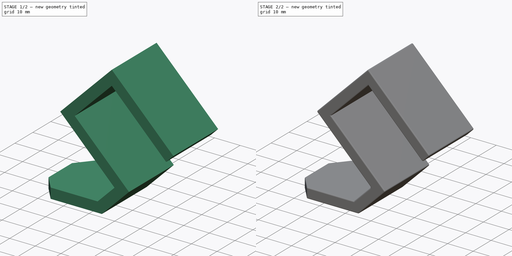
[diagram: build sequence overview — one tinted view per stage of 2, left to right]
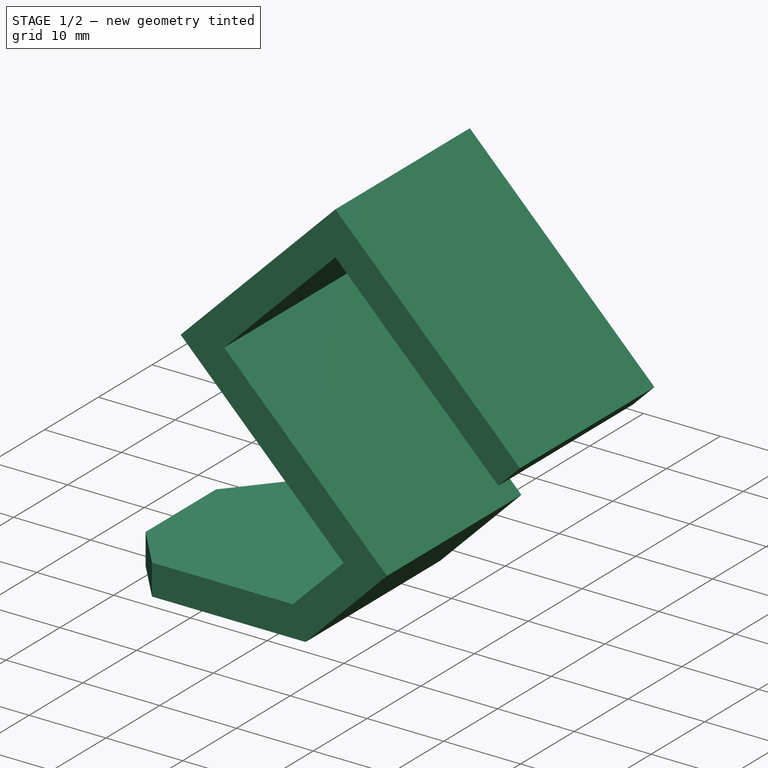
[diagram: stage 1 of 2 — iso view after this stage's code; geometry added in this stage tinted green]
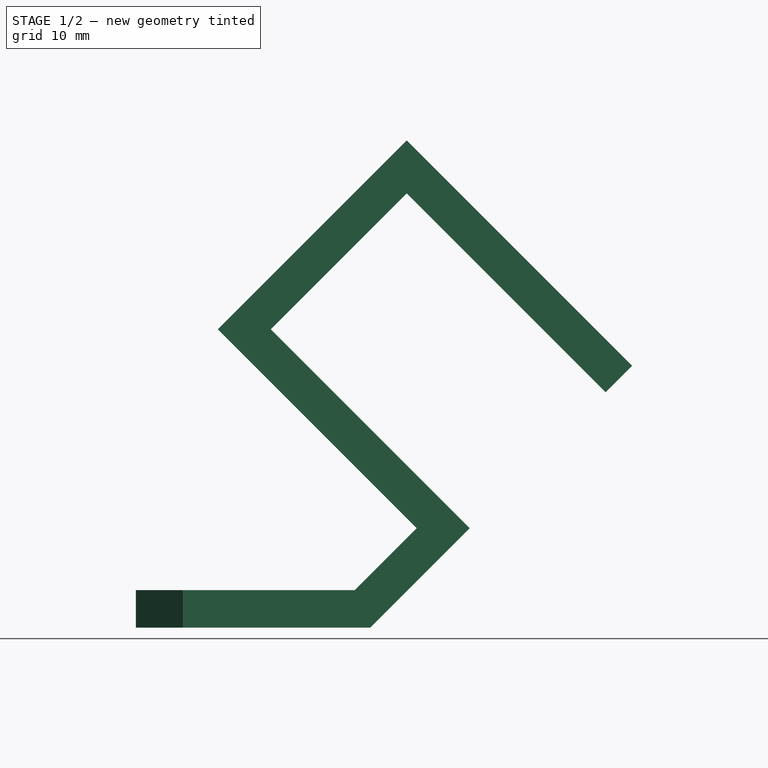
[diagram: stage 1 of 2 — front view after this stage's code; geometry added in this stage tinted green]
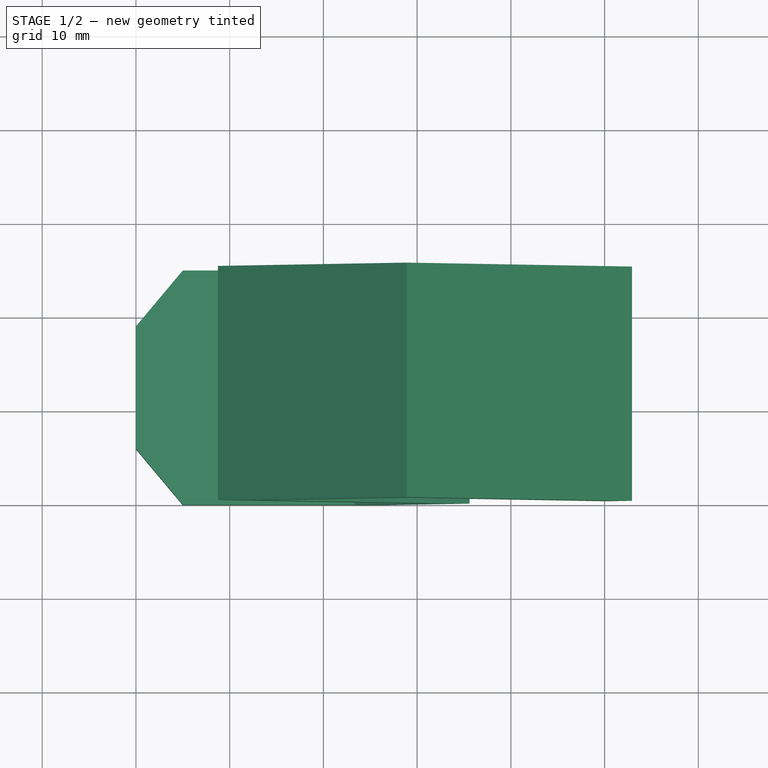
[diagram: stage 1 of 2 — top view after this stage's code; geometry added in this stage tinted green]
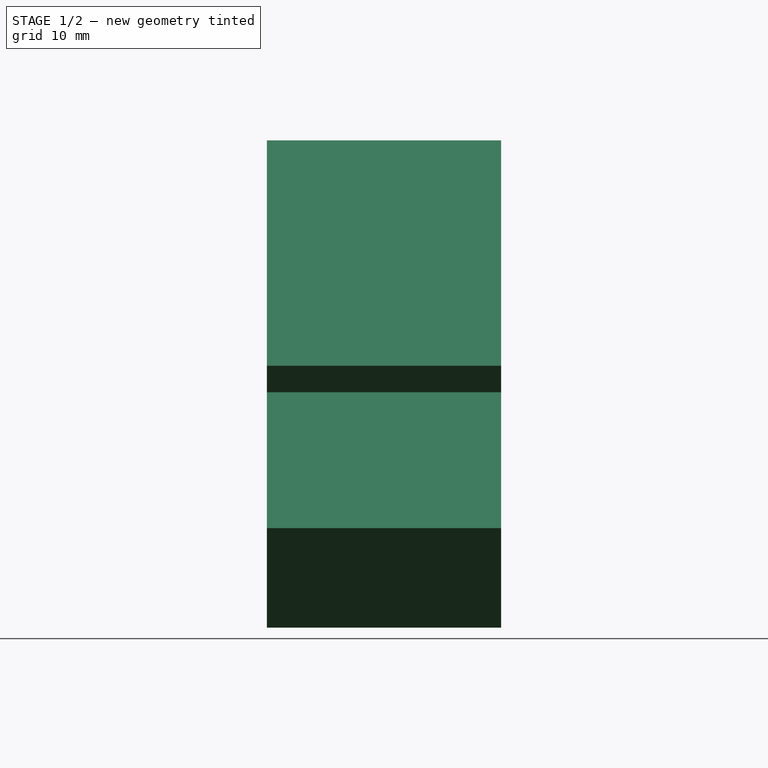
[diagram: stage 1 of 2 — right view after this stage's code; geometry added in this stage tinted green]
FCSTD DOCUMENT  (FreeCAD 0.20R29410 (Git))
Label: ikea_billy_hook
License: All rights reserved
LicenseURL: http://en.wikipedia.org/wiki/All_rights_reserved
objects: Sketcher::SketchObject×2, PartDesign::Pad×2, Spreadsheet::Sheet×1, PartDesign::Fillet×1, PartDesign::Body×1
note: 9 computed .brp shape members not serialized (recipe doc carries the construction recipe); baked Part::Feature solids carry a one-line shape summary decoded from their .brp

FEATURE [Spreadsheet::Sheet] Spreadsheet  label="dimensions"
  cells = A1=thickness; B1(thickness)==4mm; A2=angle; B2(angle)=135; A3=height; B3(height)==30mm; A4=door; B4(door)==20mm; A5=width; B5(width)==25mm; A6=tolerance; B6(tolerance)==0.5mm
FEATURE [Sketcher::SketchObject] Sketch
  FullyConstrained = true
  MapMode = 5
  Support = -> [XY_Plane]
  expr: Constraints[13] = <<dimensions>>.width
  expr: Constraints[15] = 40 + 90
  sketch-geometry (6):
    g0: LineSegment StartX=5 StartY=0 StartZ=0 EndX=0 EndY=5.95877 EndZ=0
    g1: LineSegment StartX=0 StartY=5.95877 StartZ=0 EndX=0 EndY=19.0412 EndZ=0
    g2: LineSegment StartX=0 StartY=19.0412 StartZ=0 EndX=5 EndY=25 EndZ=0
    g3: LineSegment StartX=5 StartY=25 StartZ=0 EndX=25 EndY=25 EndZ=0
    g4: LineSegment StartX=25 StartY=25 StartZ=0 EndX=25 EndY=0 EndZ=0
    g5: LineSegment StartX=25 StartY=0 StartZ=0 EndX=5 EndY=0 EndZ=0
  constraints (18):
    c: PointOnObject(g0,g-1)
    c: PointOnObject(g0,g-2)
    c: Coincident(g0,g1)
    c: PointOnObject(g1,g-2)
    c: Coincident(g1,g2)
    c: Equal(g0,g2)
    c: DistanceX(g-1,g0) = 5
    c: Coincident(g3,g4)
    c: Coincident(g4,g5)
    c: Horizontal(g3)
    c: Horizontal(g5)
    c: Vertical(g4)
    c: Coincident(g3,g2)
    c: DistanceY(g4,g4) = 25
    c: Coincident(g5,g0)
    c: Angle(g5,g0) = 2.26893
    c: Vertical(g2,g0)
    c: DistanceX(g3,g3) = 20
FEATURE [PartDesign::Pad] Pad
  Direction = (0,0,1)
  Length = 4
  Length2 = 10
  Profile = -> Sketch
  ReferenceAxis = -> Sketch [N_Axis]
  Type = 0
  expr: Length = <<dimensions>>.thickness
FEATURE [Sketcher::SketchObject] Sketch001
  FullyConstrained = true
  MapMode = 5
  Placement = pos=(0,0,0) rot=(1,0,0;1.5708rad)
  Support = -> [XZ_Plane]
  expr: Constraints[21] = <<dimensions>>.thickness
  expr: Constraints[22] = <<dimensions>>.thickness
  expr: Constraints[23] = <<dimensions>>.thickness
  expr: Constraints[24] = <<dimensions>>.thickness
  expr: Constraints[25] = <<dimensions>>.door + <<dimensions>>.tolerance
  expr: Constraints[27] = <<dimensions>>.height
  expr: Constraints[28] = <<dimensions>>.angle
  sketch-geometry (10):
    g0: LineSegment StartX=29.9497 StartY=10.6066 StartZ=0 EndX=19.3431 EndY=0 EndZ=0
    g1: LineSegment StartX=19.3431 StartY=0 StartZ=0 EndX=25 EndY=0 EndZ=0
    g2: LineSegment StartX=25 StartY=0 StartZ=0 EndX=35.6066 EndY=10.6066 EndZ=0
    g3: LineSegment StartX=35.6066 StartY=10.6066 StartZ=0 EndX=14.3934 EndY=31.8198 EndZ=0
    g4: LineSegment StartX=14.3934 StartY=31.8198 StartZ=0 EndX=28.8891 EndY=46.3155 EndZ=0
    g5: LineSegment StartX=28.8891 StartY=46.3155 StartZ=0 EndX=50.1023 EndY=25.1023 EndZ=0
    g6: LineSegment StartX=50.1023 StartY=25.1023 StartZ=0 EndX=52.9307 EndY=27.9307 EndZ=0
    g7: LineSegment StartX=52.9307 StartY=27.9307 StartZ=0 EndX=28.8891 EndY=51.9723 EndZ=0
    g8: LineSegment StartX=28.8891 StartY=51.9723 StartZ=0 EndX=8.73654 EndY=31.8198 EndZ=0
    g9: LineSegment StartX=8.73654 StartY=31.8198 StartZ=0 EndX=29.9497 EndY=10.6066 EndZ=0
  constraints (30):
    c: PointOnObject(g0,g-1)
    c: Coincident(g0,g1)
    c: Horizontal(g1)
    c: Coincident(g1,g2)
    c: Coincident(g2,g3)
    c: Coincident(g3,g4)
    c: Coincident(g4,g5)
    c: Coincident(g5,g6)
    c: Coincident(g6,g7)
    c: Coincident(g7,g8)
    c: Coincident(g8,g9)
    c: Coincident(g9,g0)
    c: Equal(g3,g5)
    c: Parallel(g5,g7)
    c: Parallel(g4,g8)
    c: Parallel(g9,g3)
    c: Parallel(g0,g2)
    c: Parallel(g6,g8)
    c: Angle(g9,g0) = 1.5708
    c: Angle(g3,g4) = 1.5708
    c: Angle(g4,g5) = 1.5708
    c: Distance(g7,g4) = 4
    c: Distance(g6) = 4
    c: Distance(g3,g9) = 4
    c: Distance(g0,g2) = 4
    c: Distance(g4) = 20.5
    c: DistanceX(g-1,g1) = 25
    c: Distance(g5) = 30
    c: Angle(g2,g1) = 2.35619
    c: Distance(g2) = 15
FEATURE [PartDesign::Pad] Pad001
  BaseFeature = -> Pad
  Direction = (0,-1,2e-16)
  Length = 25
  Length2 = 10
  Profile = -> Sketch001
  ReferenceAxis = -> Sketch001 [N_Axis]
  Reversed = true
  Type = 0
  expr: Length = <<dimensions>>.width
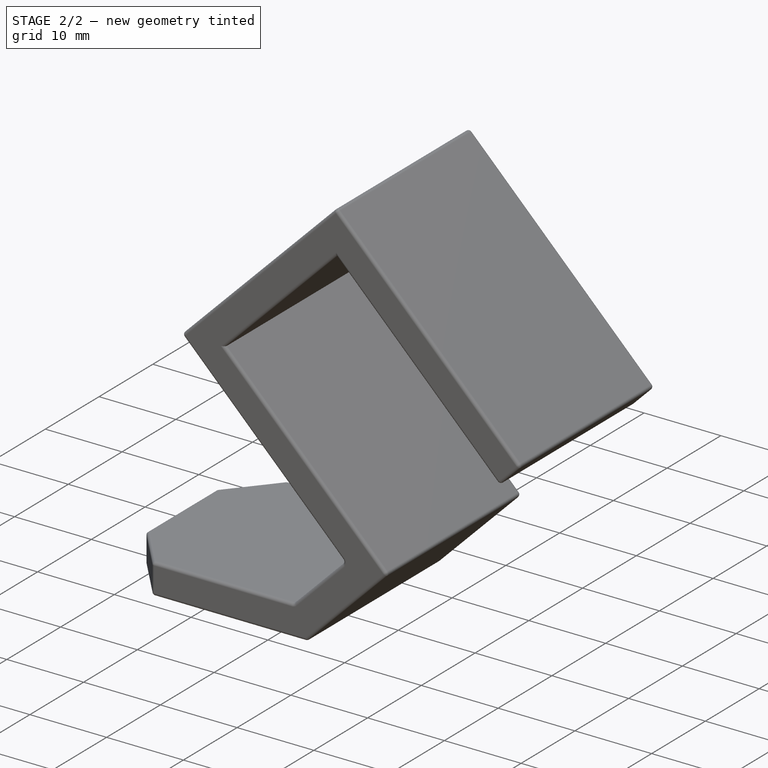
[diagram: stage 2 of 2 — iso view after this stage's code; geometry added in this stage tinted green]
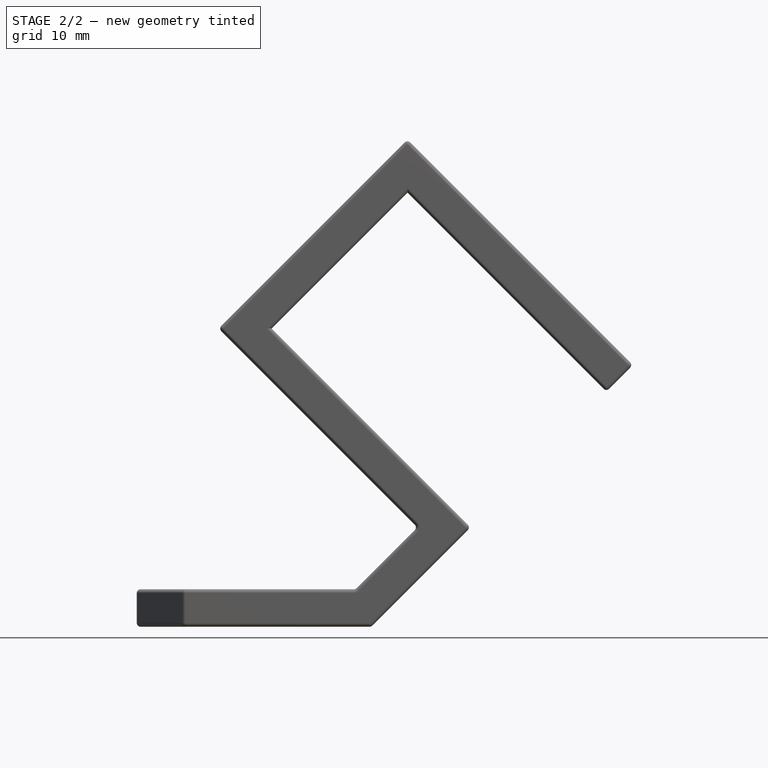
[diagram: stage 2 of 2 — front view after this stage's code; geometry added in this stage tinted green]
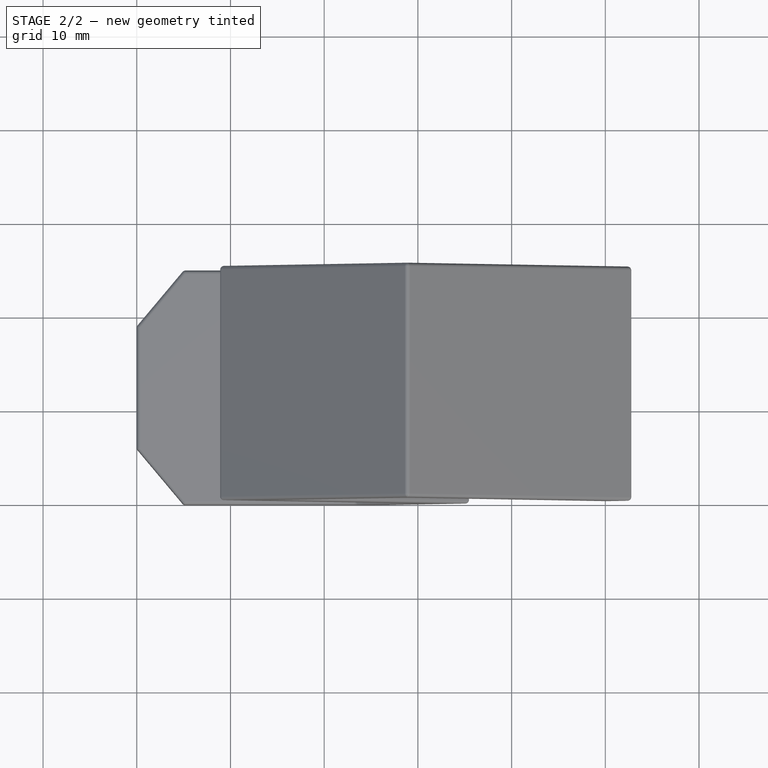
[diagram: stage 2 of 2 — top view after this stage's code; geometry added in this stage tinted green]
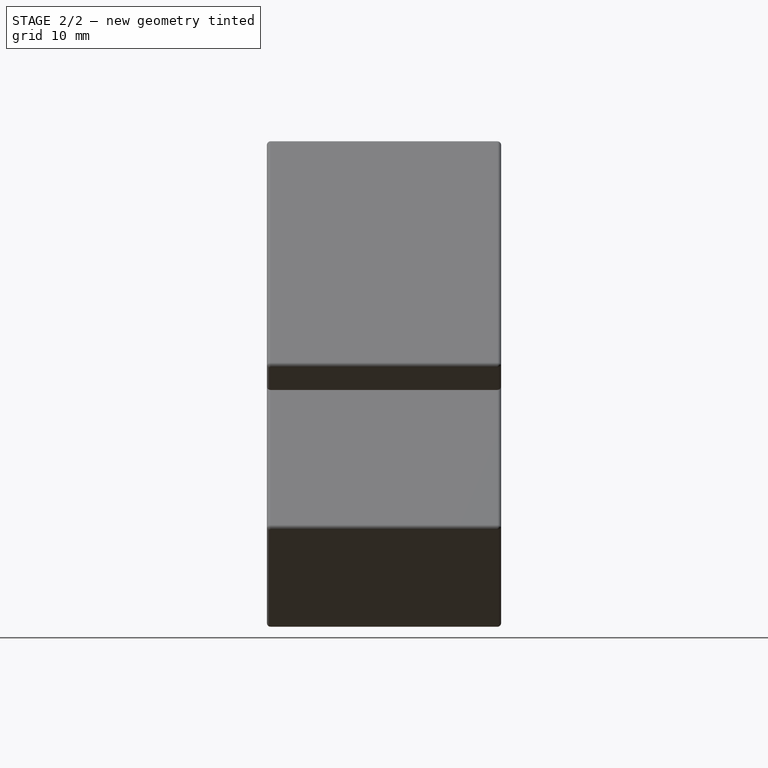
[diagram: stage 2 of 2 — right view after this stage's code; geometry added in this stage tinted green]
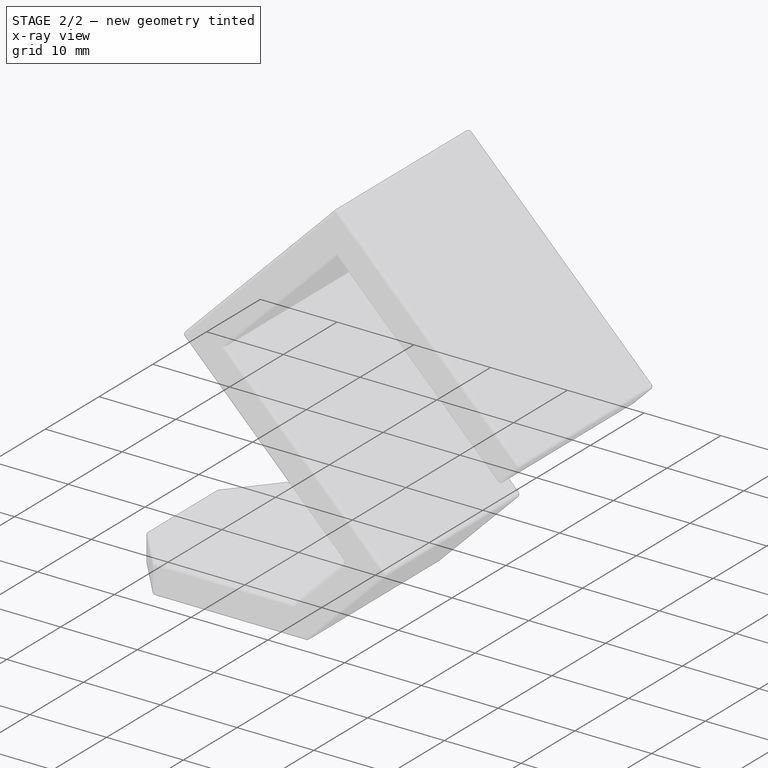
[diagram: stage 2 of 2 — x-ray composite at the iso view; earlier geometry ghosted, this stage's added geometry solid]
FEATURE [PartDesign::Fillet] Fillet
  Base = -> Pad001 [Edge28,Edge29,Edge33,Edge34,Edge24,Edge27,Edge5,Edge17,Edge6,Edge4,Edge3,Edge1,Edge2,Edge30,Edge32,Edge49,Edge31,Edge46,Edge10,Edge9,Edge8,Edge14,Edge11,Edge20,Edge44,Edge51,Edge45,Edge26,Edge16,Edge15,Edge12,Edge22,Edge38,Edge39,Edge40,Edge41,Edge43,Edge42,Edge50,Edge37,+2 more]
  BaseFeature = -> Pad001
  Radius = 0.4
  SupportTransform = false
  UseAllEdges = false
FEATURE [PartDesign::Body] Body
  Group = -> [Sketch,Pad,Sketch001,Pad001,Fillet]
  Origin = -> Origin
  Tip = -> Fillet
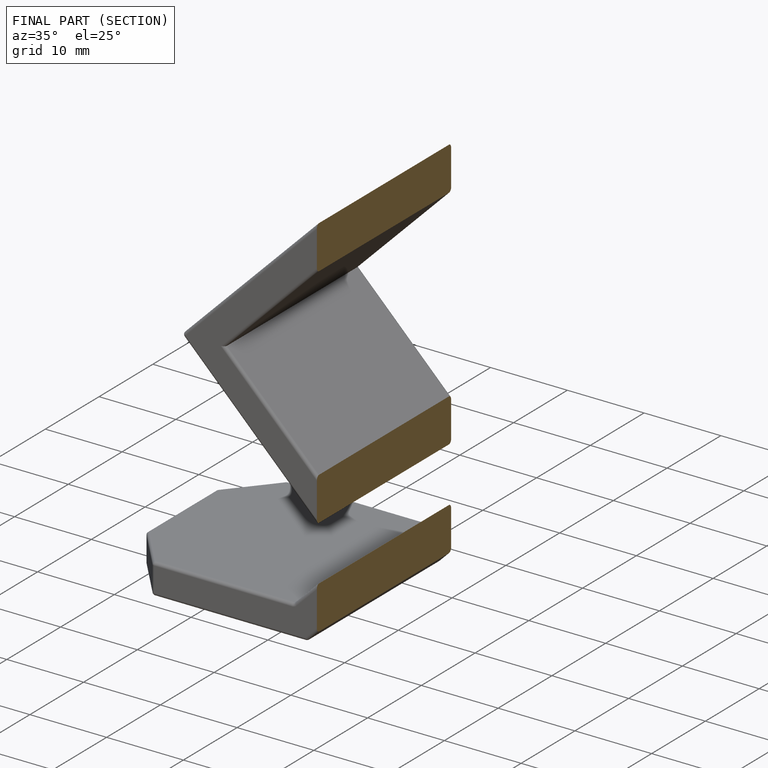
[diagram: finished part — half-section view (interior)]
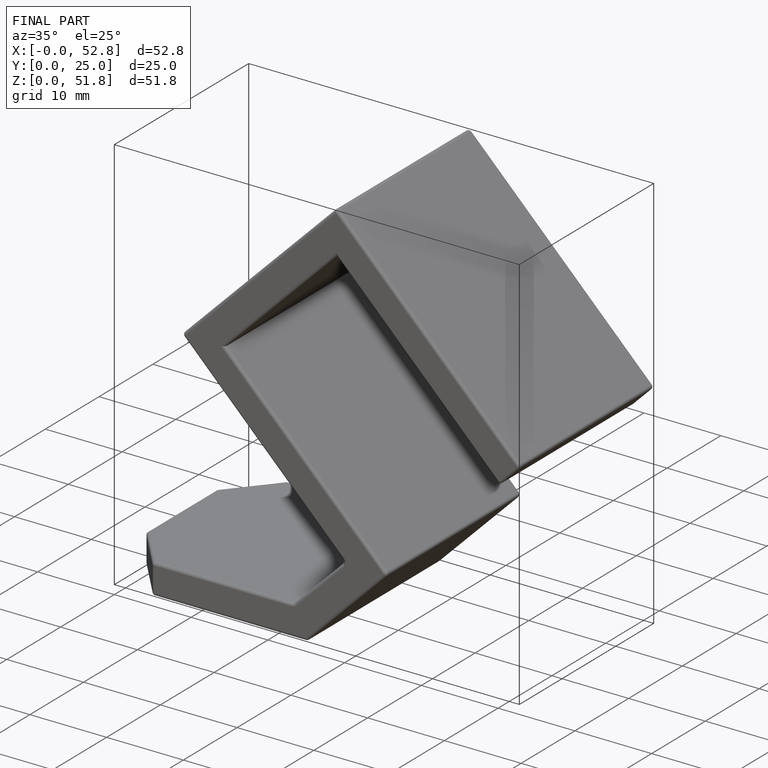
[diagram: finished part — iso view with bounding-box wireframe]
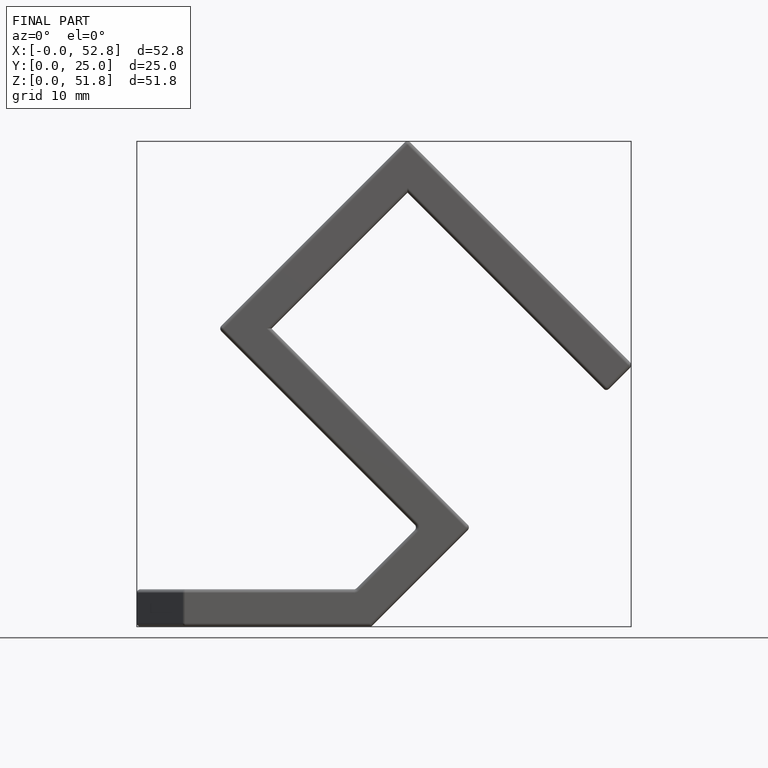
[diagram: finished part — front view with bounding-box wireframe]
